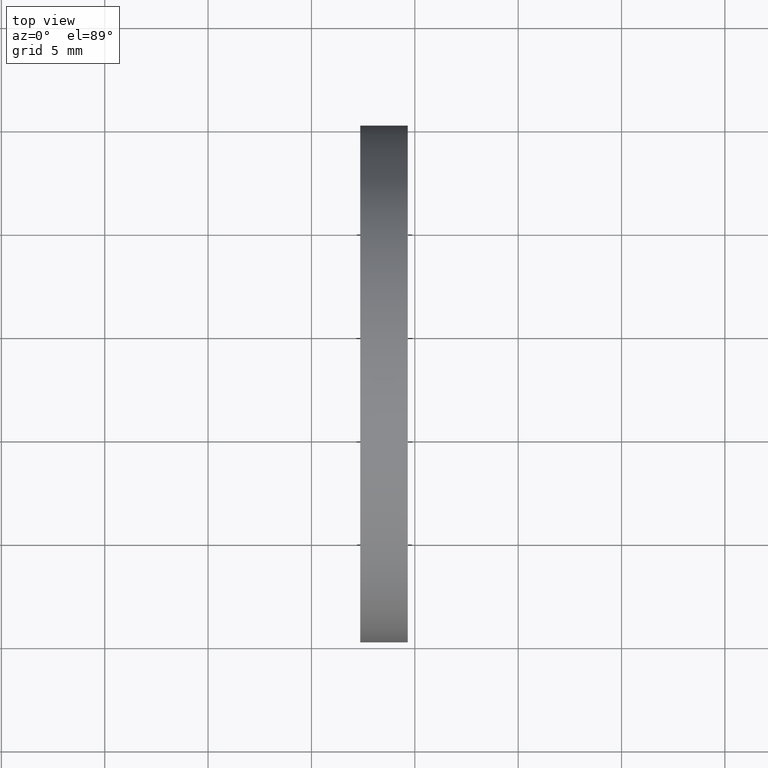
[diagram: clean part render]
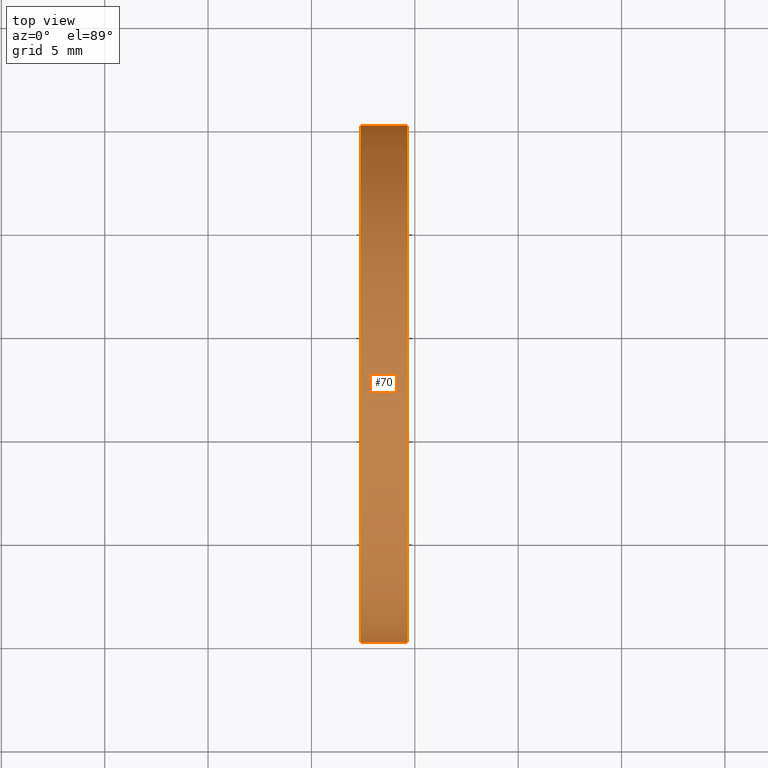
[diagram: same view with one face highlighted and labeled with its STEP entity id]
A machine part, top view. The second image highlights one B-rep face of the part: STEP entity #70.
In plain terms, the highlighted cylindrical surface (partial cylindrical patch) has radius 12.5 mm, axis along (-1, 0, -0).
Its self-contained STEP definition (entity closure, byte-faithful):
#1 = AXIS2_PLACEMENT_3D ( 'NONE', #85, #37, #5 ) ;
#5 = DIRECTION ( 'NONE',  ( -5.551115123125784700E-016, -1.000000000000000000, 0.0000000000000000000 ) ) ;
#19 = ORIENTED_EDGE ( 'NONE', *, *, #52, .T. ) ;
#21 = CARTESIAN_POINT ( 'NONE',  ( 59.66096665815478400, 32.57872591329309100, 0.0000000000000000000 ) ) ;
#25 = VECTOR ( 'NONE', #148, 1000.000000000000000 ) ;
#31 = CYLINDRICAL_SURFACE ( 'NONE', #56, 12.49999999999999600 ) ;
#33 = LINE ( 'NONE', #104, #25 ) ;
#37 = DIRECTION ( 'NONE',  ( -1.000000000000000000, 7.636108817321419600E-016, -0.0000000000000000000 ) ) ;
#40 = CARTESIAN_POINT ( 'NONE',  ( 59.66096665815475600, 20.07872591329412500, 0.0000000000000000000 ) ) ;
#44 = EDGE_CURVE ( 'NONE', #129, #166, #57, .T. ) ;
#50 = DIRECTION ( 'NONE',  ( -1.000000000000000000, 7.636108817321419600E-016, -0.0000000000000000000 ) ) ;
#52 = EDGE_CURVE ( 'NONE', #98, #94, #106, .T. ) ;
#56 = AXIS2_PLACEMENT_3D ( 'NONE', #135, #50, #125 ) ;
#57 = CIRCLE ( 'NONE', #1, 12.49999999999999600 ) ;
#60 = DIRECTION ( 'NONE',  ( -5.551115123125785700E-016, -1.000000000000000000, 0.0000000000000000000 ) ) ;
#67 = ORIENTED_EDGE ( 'NONE', *, *, #140, .F. ) ;
#70 = ADVANCED_FACE ( 'NONE', ( #136 ), #31, .T. ) ;
#74 = CARTESIAN_POINT ( 'NONE',  ( 55.00739462442118800, 45.07872591329309100, 1.530808498934191100E-015 ) ) ;
#85 = CARTESIAN_POINT ( 'NONE',  ( 57.35819015802111000, 32.57872591329309800, 0.0000000000000000000 ) ) ;
#93 = AXIS2_PLACEMENT_3D ( 'NONE', #21, #120, #60 ) ;
#94 = VERTEX_POINT ( 'NONE', #158 ) ;
#96 = VECTOR ( 'NONE', #149, 1000.000000000000000 ) ;
#98 = VERTEX_POINT ( 'NONE', #40 ) ;
#104 = CARTESIAN_POINT ( 'NONE',  ( 55.00739462442117400, 20.07872591329309800, 0.0000000000000000000 ) ) ;
#105 = EDGE_LOOP ( 'NONE', ( #19, #141, #157, #67 ) ) ;
#106 = CIRCLE ( 'NONE', #93, 12.49999999999999300 ) ;
#119 = EDGE_CURVE ( 'NONE', #94, #166, #165, .T. ) ;
#120 = DIRECTION ( 'NONE',  ( -1.000000000000000000, 7.636108817321419600E-016, -0.0000000000000000000 ) ) ;
#124 = CARTESIAN_POINT ( 'NONE',  ( 57.35819015802110200, 20.07872591329309800, 0.0000000000000000000 ) ) ;
#125 = DIRECTION ( 'NONE',  ( -5.551115123125784700E-016, -1.000000000000000000, 0.0000000000000000000 ) ) ;
#129 = VERTEX_POINT ( 'NONE', #124 ) ;
#135 = CARTESIAN_POINT ( 'NONE',  ( 55.00739462442118100, 32.57872591329309800, 0.0000000000000000000 ) ) ;
#136 = FACE_OUTER_BOUND ( 'NONE', #105, .T. ) ;
#140 = EDGE_CURVE ( 'NONE', #98, #129, #33, .T. ) ;
#141 = ORIENTED_EDGE ( 'NONE', *, *, #119, .T. ) ;
#148 = DIRECTION ( 'NONE',  ( -1.000000000000000000, 7.636108817321419600E-016, -0.0000000000000000000 ) ) ;
#149 = DIRECTION ( 'NONE',  ( -1.000000000000000000, 7.636108817321419600E-016, -0.0000000000000000000 ) ) ;
#150 = CARTESIAN_POINT ( 'NONE',  ( 57.35819015802111700, 45.07872591329309100, 1.530808498934191500E-015 ) ) ;
#157 = ORIENTED_EDGE ( 'NONE', *, *, #44, .F. ) ;
#158 = CARTESIAN_POINT ( 'NONE',  ( 59.66096665815476300, 45.07872591329232400, 1.530808498934064100E-015 ) ) ;
#165 = LINE ( 'NONE', #74, #96 ) ;
#166 = VERTEX_POINT ( 'NONE', #150 ) ;